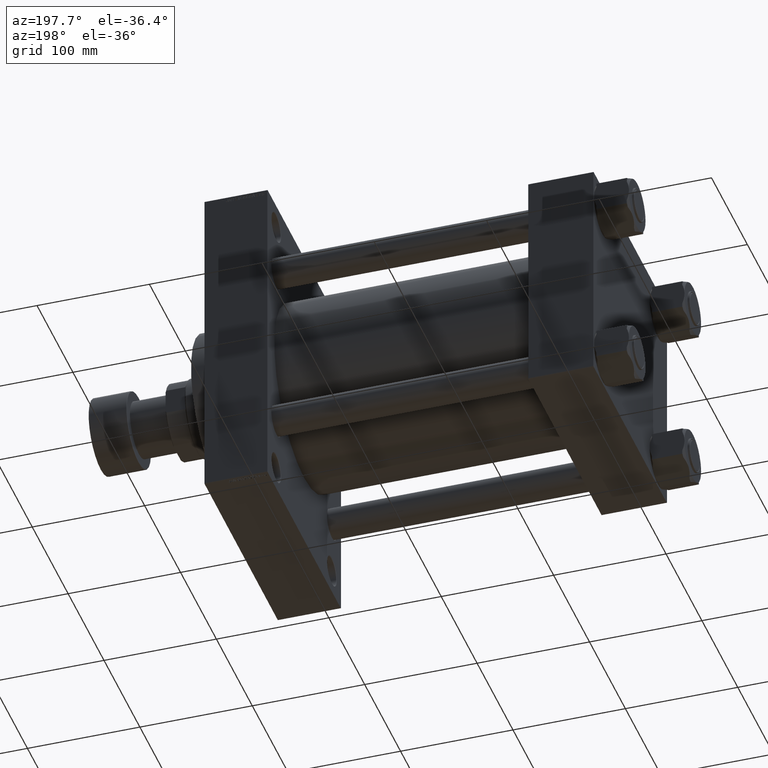
[diagram: clean part render]
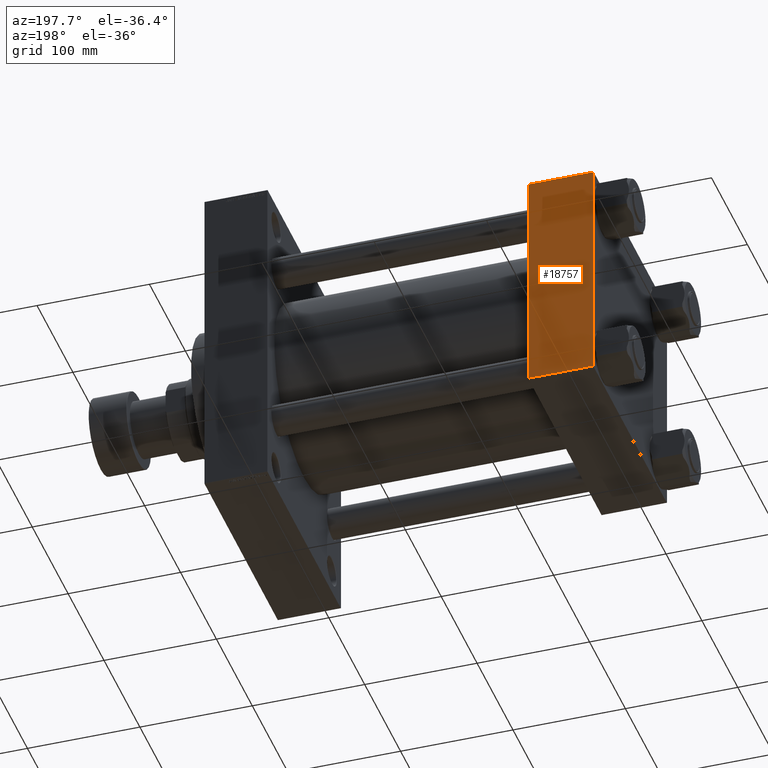
[diagram: same view with one face highlighted and labeled with its STEP entity id]
A machine part, auxiliary view. The second image highlights one B-rep face of the part: STEP entity #18757.
In plain terms, the highlighted planar face has unit normal (0, 1, 0).
Its self-contained STEP definition (entity closure, byte-faithful):
#1265 = DIRECTION ( 'NONE',  ( 0.000000000000000000, 0.000000000000000000, -1.000000000000000000 ) ) ;
#2586 = VECTOR ( 'NONE', #29932, 1000.000000000000000 ) ;
#2809 = ORIENTED_EDGE ( 'NONE', *, *, #27196, .T. ) ;
#2926 = DIRECTION ( 'NONE',  ( 0.000000000000000000, -0.000000000000000000, 1.000000000000000000 ) ) ;
#3395 = FACE_OUTER_BOUND ( 'NONE', #29431, .T. ) ;
#6163 = LINE ( 'NONE', #21006, #25047 ) ;
#7072 = LINE ( 'NONE', #40179, #39642 ) ;
#12131 = VERTEX_POINT ( 'NONE', #40883 ) ;
#12360 = ORIENTED_EDGE ( 'NONE', *, *, #41019, .T. ) ;
#13055 = CARTESIAN_POINT ( 'NONE',  ( 0.000000000000000000, 102.5000000000000000, -101.9999999999999005 ) ) ;
#14833 = CARTESIAN_POINT ( 'NONE',  ( 58.00000000000000000, 102.5000000000000000, 102.0000000000000142 ) ) ;
#17720 = VERTEX_POINT ( 'NONE', #13055 ) ;
#18757 = ADVANCED_FACE ( 'NONE', ( #3395 ), #36259, .T. ) ;
#21006 = CARTESIAN_POINT ( 'NONE',  ( 58.00000000000000000, 102.5000000000000000, 102.5000000000000142 ) ) ;
#22744 = VERTEX_POINT ( 'NONE', #47991 ) ;
#23030 = VERTEX_POINT ( 'NONE', #27201 ) ;
#23829 = EDGE_CURVE ( 'NONE', #23030, #17720, #31176, .T. ) ;
#25047 = VECTOR ( 'NONE', #35367, 1000.000000000000000 ) ;
#25296 = DIRECTION ( 'NONE',  ( -0.000000000000000000, 1.000000000000000000, 0.000000000000000000 ) ) ;
#27196 = EDGE_CURVE ( 'NONE', #22744, #17720, #7072, .T. ) ;
#27201 = CARTESIAN_POINT ( 'NONE',  ( 0.000000000000000000, 102.5000000000000000, 102.0000000000000142 ) ) ;
#29431 = EDGE_LOOP ( 'NONE', ( #30449, #2809, #47410, #12360 ) ) ;
#29932 = DIRECTION ( 'NONE',  ( 1.000000000000000000, 0.000000000000000000, 0.000000000000000000 ) ) ;
#30449 = ORIENTED_EDGE ( 'NONE', *, *, #38873, .T. ) ;
#31176 = LINE ( 'NONE', #34841, #35791 ) ;
#33112 = LINE ( 'NONE', #14833, #2586 ) ;
#34841 = CARTESIAN_POINT ( 'NONE',  ( 0.000000000000000000, 102.5000000000000000, 102.5000000000000142 ) ) ;
#35367 = DIRECTION ( 'NONE',  ( 0.000000000000000000, 0.000000000000000000, -1.000000000000000000 ) ) ;
#35791 = VECTOR ( 'NONE', #1265, 1000.000000000000000 ) ;
#36259 = PLANE ( 'NONE',  #37693 ) ;
#36520 = DIRECTION ( 'NONE',  ( -1.000000000000000000, 0.000000000000000000, 0.000000000000000000 ) ) ;
#37693 = AXIS2_PLACEMENT_3D ( 'NONE', #47937, #25296, #2926 ) ;
#38873 = EDGE_CURVE ( 'NONE', #12131, #22744, #6163, .T. ) ;
#39642 = VECTOR ( 'NONE', #36520, 1000.000000000000000 ) ;
#40179 = CARTESIAN_POINT ( 'NONE',  ( 58.00000000000000000, 102.5000000000000000, -101.9999999999999005 ) ) ;
#40883 = CARTESIAN_POINT ( 'NONE',  ( 58.00000000000000000, 102.5000000000000000, 102.0000000000000142 ) ) ;
#41019 = EDGE_CURVE ( 'NONE', #23030, #12131, #33112, .T. ) ;
#47410 = ORIENTED_EDGE ( 'NONE', *, *, #23829, .F. ) ;
#47937 = CARTESIAN_POINT ( 'NONE',  ( 58.00000000000000000, 102.5000000000000000, 102.5000000000000142 ) ) ;
#47991 = CARTESIAN_POINT ( 'NONE',  ( 58.00000000000000000, 102.5000000000000000, -101.9999999999999005 ) ) ;